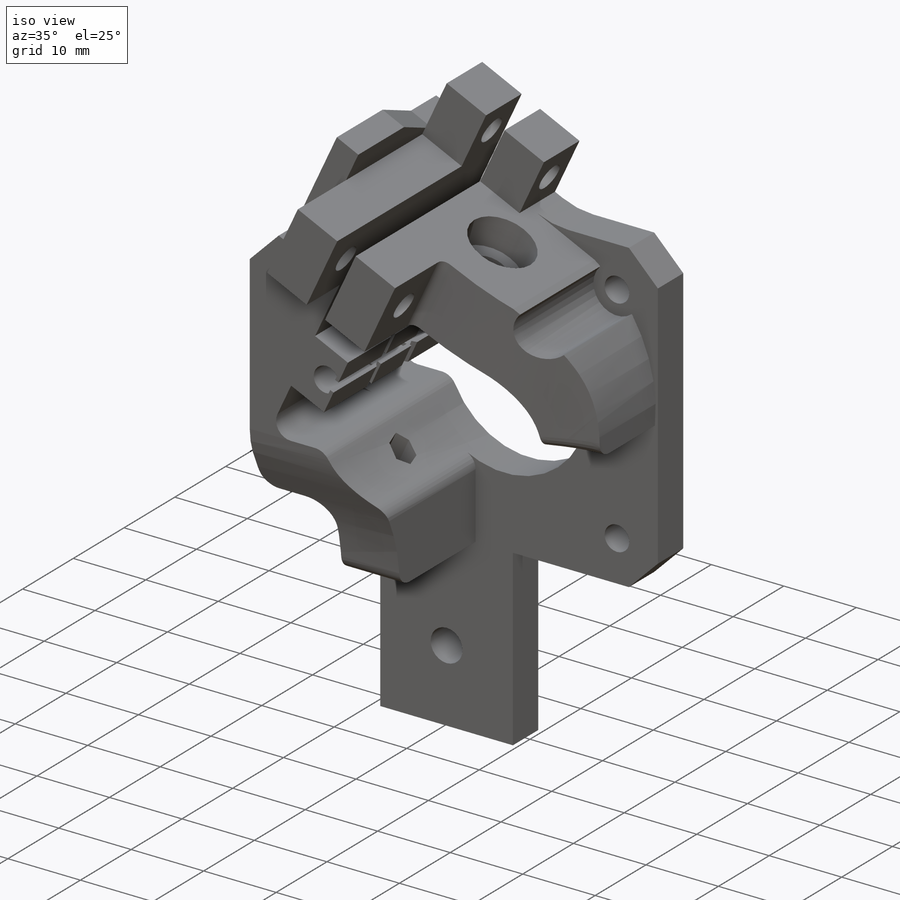
[diagram: iso view]
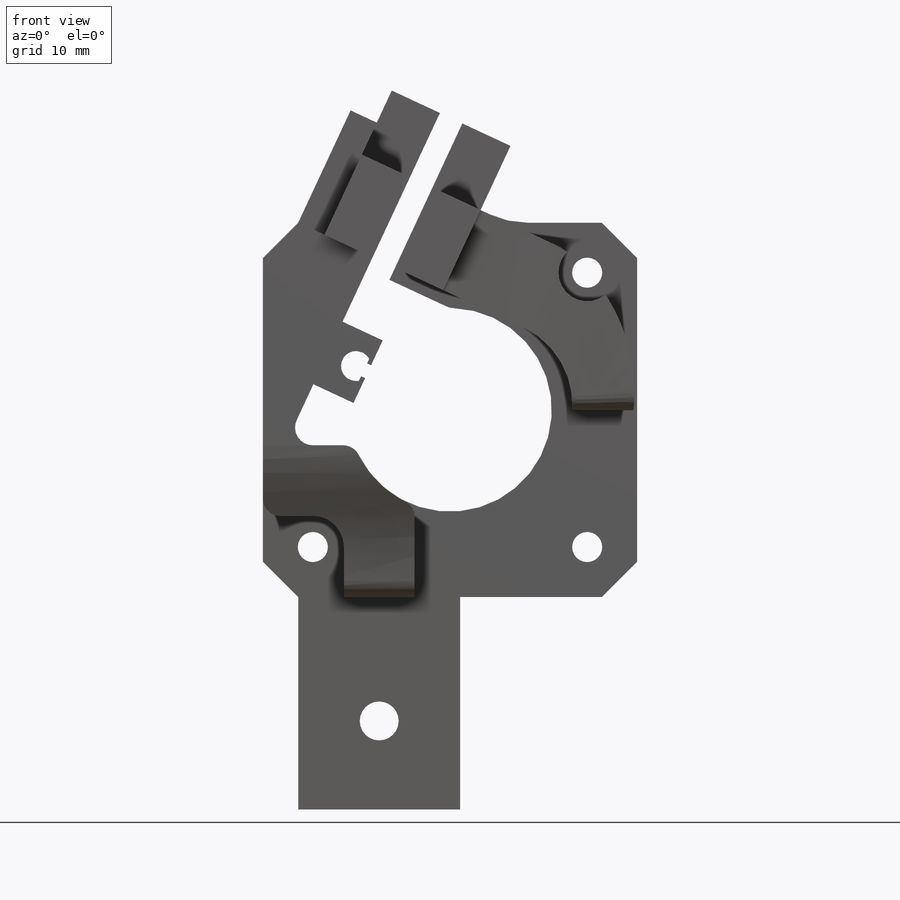
[diagram: front view]
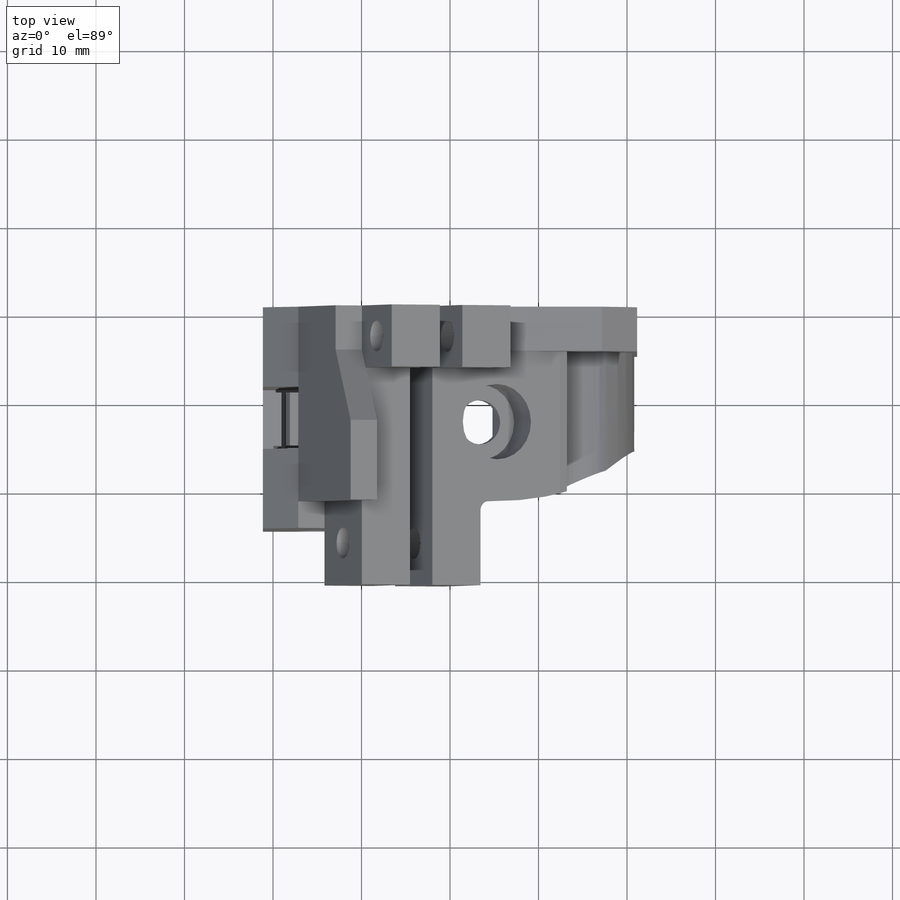
[diagram: top view]
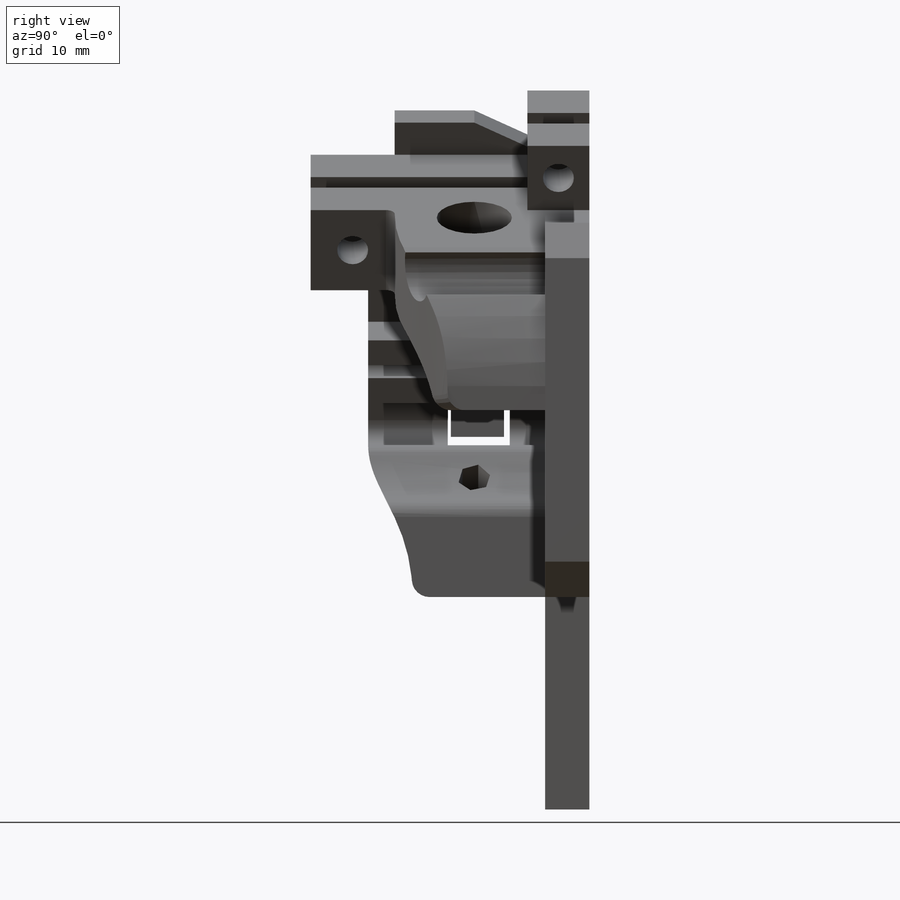
[diagram: right view]
SOLIDWORKS PART (.sldprt)
format: sldprt  version: not decoded by parser v0  size: 925,184 bytes
history: native  units: mm
features: sketch x27, extrude x10, cut_extrude x7, fillet x7, plane x5, hole x5, chamfer x2, material x1 (+9 scaffold rows collapsed)
feature tree (73):
  scaffold x9  (default folders/planes/origin — collapsed)
  material  "Matériau <non spécifié>"
  plane  "Plan de face"
  plane  "Plan de dessus"
  plane  "Plan de droite"
  sketch  "Esquisse1"  dims[D1=24.0mm D2=16.0mm]
  extrude  "Boss.-Extru.1"  Depth=5mm
  hole  "Dégagement M31"  Diameter=3.4mm Depth=26mm
  sketch  "Esquisse3"
  sketch  "Esquisse2"  dims[hole-wizard template sketch: 47 standard entries collapsed; hole parameters kept: c15.Profondeur du perçage=26.0mm c15.D3=~14.816244mm c15.Angle de pointe=180.0deg]
  hole  "Dégagement M41"  Diameter=4.4mm Depth=26mm
  sketch  "Esquisse14"  dims[D1=10.0mm]
  sketch  "Esquisse13"  dims[hole-wizard template sketch: 47 standard entries collapsed; hole parameters kept: c15.Profondeur du perçage=26.0mm c15.D3=~14.816244mm c15.Angle de pointe=180.0deg]
  sketch  "Esquisse4"  dims[c1.D7=11.5mm c1.D8=3.5mm c1.D1=~10.328055mm c1.D2=~30.990615mm c2.D1=30.0mm c2.D2=10.0mm c2.D3=10.0mm c3.D1=7.0mm c3.D3=3.5mm c3.D4=3.5mm c4.D3=3.5mm c4.D5=12.0mm c4.D6=8.0mm c4.D7=8.0mm]
  extrude  "Boss.-Extru.2"  Depth=22mm
  hole  "Dégagement M51"  Diameter=5mm Depth=14mm
  sketch  "Esquisse25"
  sketch  "Esquisse24"  dims[hole-wizard template sketch: 47 standard entries collapsed; hole parameters kept: c15.Profondeur du perçage=14.0mm c15.D3=~14.816244mm c15.Angle de pointe=180.0deg]
  sketch  "Esquisse5"  dims[D1=8.5mm]
  cut_extrude  "Enlèv. mat.-Extru.1"  Depth=4.5mm
  sketch  "Esquisse29"  dims[D1=8.227mm]
  cut_extrude  "Enlèv. mat.-Extru.8"  Depth=4.7mm
  sketch  "Esquisse6"  dims[D1=3.2mm]
  cut_extrude  "Enlèv. mat.-Extru.2"  [1 undecoded]
  sketch  "Esquisse7"  dims[c1.D1=~3.317125mm c1.D2=~54.400846mm c2.D1=2.8mm c2.D2=2.5mm c2.D3=~0.094833mm]
  cut_extrude  "Enlèv. mat.-Extru.3"  [1 undecoded]
  sketch  "Esquisse8"  dims[c1.D3=~4.706175mm c1.D1=~3.446747mm c1.D2=~6.254792mm c2.D1=~1.182422mm c2.D2=~5.548659mm c3.D1=7.8mm c3.D2=5.0mm]
  extrude  "Boss.-Extru.3"  Depth=25mm
  hole  "Dégagement M32"  Diameter=3.4mm Depth=25mm
  sketch  "Esquisse10"  dims[D1=1.5mm]
  sketch  "Esquisse11"  dims[hole-wizard template sketch: 60 standard entries collapsed; hole parameters kept: c18.Profondeur du perçage jusqu'au prochain=25.0mm]
  sketch  "Esquisse12"  dims[c1.D1=~0.510577mm c1.D2=~0.378215mm c2.D1=~0.557718mm c2.D2=~0.49536mm c3.D1=0.5mm]
  extrude  "Boss.-Extru.5"  [1 undecoded]
  plane  "Plan1"  Offset=9mm
  sketch  "Esquisse15"  dims[D1=0.0mm]
  cut_extrude  "Enlèv. mat.-Extru.4"  Depth=7mm
  sketch  "Esquisse16"  dims[c1.D1=10.0mm c1.D2=~5.26478mm c2.D1=10.0mm c2.D2=~1.486198mm c3.D1=6.0mm c3.D2=6.0mm]
  extrude  "Boss.-Extru.6"  Depth=9.5mm
  sketch  "Esquisse17"  dims[c1.D1=~4.634694mm c1.D2=~6.899969mm c2.D1=6.0mm c2.D2=6.0mm c2.D3=7.0mm]
  extrude  "Boss.-Extru.7"  Depth=8mm
  hole  "Dégagement M33"  Diameter=3.5mm Depth=16mm
  sketch  "Esquisse19"  dims[D1=~4.103628mm]
  sketch  "Esquisse18"  dims[hole-wizard template sketch: 46 standard entries collapsed; hole parameters kept: c15.Diamètre du perçage=3.5mm c15.Profondeur du perçage=16.0mm c15.D3=~14.816244mm c15.Angle de pointe=180.0deg]
  sketch  "Esquisse20"  dims[D1=0.0mm]
  extrude  "Boss.-Extru.8"  [1 undecoded]
  fillet  "Congé3"  Radius=2mm
  sketch  "Esquisse21"  dims[D1=10.0mm]
  cut_extrude  "Enlèv. mat.-Extru.6"  [1 undecoded]
  fillet  "Congé5"  Radius=10mm
  fillet  "Congé7"  Radius=1mm
  fillet  "Congé9"  Radius=2mm
  fillet  "Congé10"  Radius=2mm
  chamfer  "Chanfrein1"  Distance=2mm Angle=45deg
  plane  "Plan2"  Offset=0.35mm
  sketch  "Esquisse22"  dims[c1.D2=~0.127032mm c1.D4=0.0mm c1.D1=0.0mm c2.D2=0.1mm c2.D3=0.3mm c2.D4=0.15mm c2.D5=0.15mm c3.D4=0.2mm c3.D5=0.2mm]
  extrude  "Boss.-Extru.9"  Depth=6mm
  chamfer  "Chanfrein2"  Distance=0.5mm Angle=45deg
  sketch  "Esquisse26"
  extrude  "Boss.-Extru.10"  [1 undecoded]
  sketch  "Esquisse27"  dims[D1=6.0mm]
  cut_extrude  "Enlèv. mat.-Extru.7"  Depth=10mm
  fillet  "Congé11"  Radius=2mm
  sketch  "Esquisse28"  dims[D1=9.0mm D2=5.0mm D3=4.0mm]
  extrude  "Boss.-Extru.11"  [1 undecoded]
  fillet  "Congé12"  Radius=2mm
decode coverage: 48 of 58 modeling features carry decoded parameters
note: ~ marks probable driven/reference dimensions
note: 7 parameter values undecoded
summary: no parameter record found for 7 features; Diameter pulled from absorbed wizard sketch
note: suppression state not decoded; provenance and decode notes live in map.json
